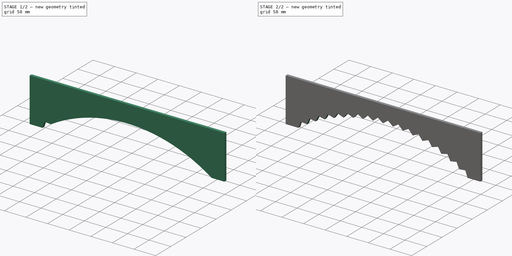
[diagram: build sequence overview — one tinted view per stage of 2, left to right]
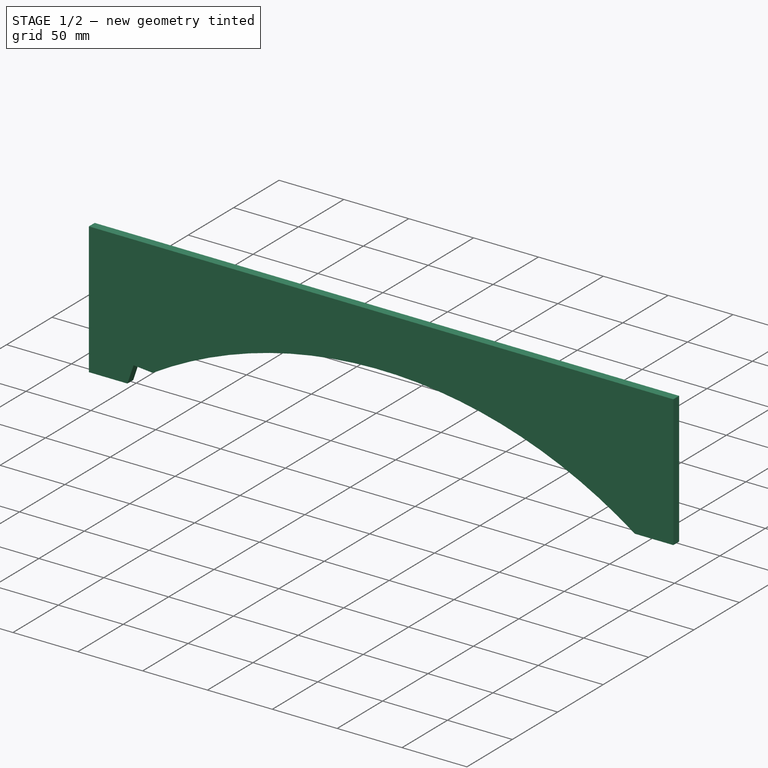
[diagram: stage 1 of 2 — iso view after this stage's code; geometry added in this stage tinted green]
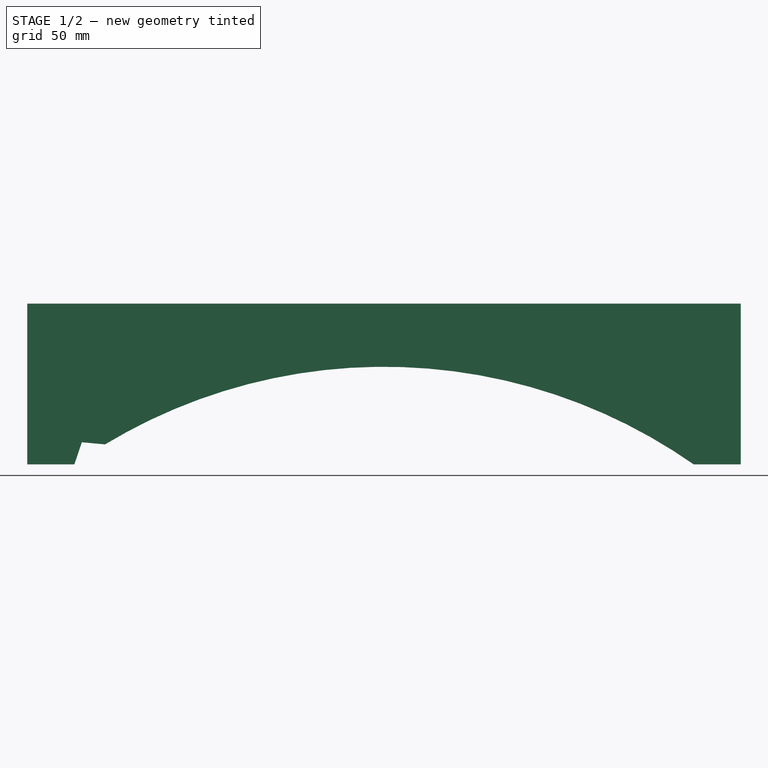
[diagram: stage 1 of 2 — front view after this stage's code; geometry added in this stage tinted green]
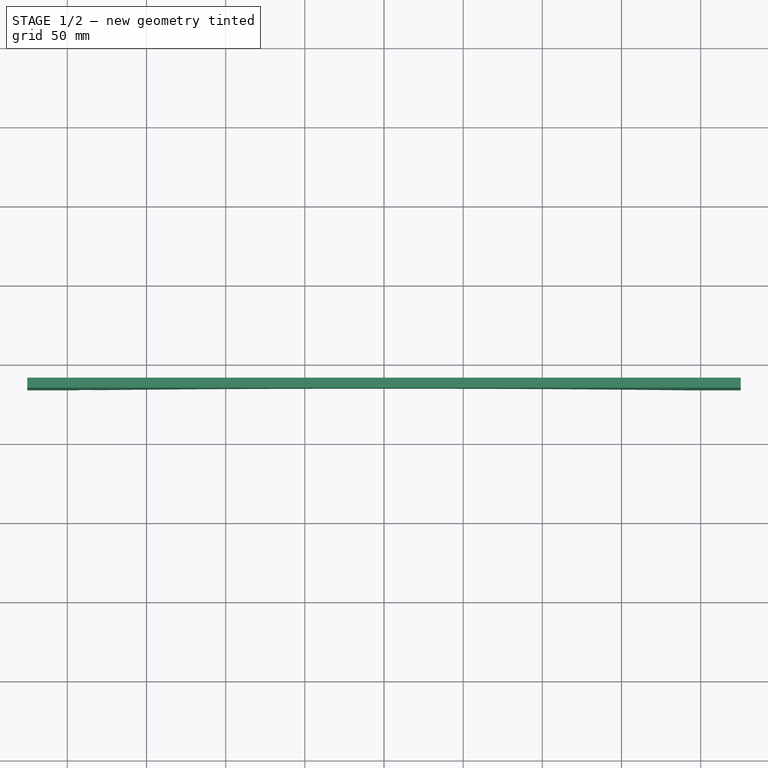
[diagram: stage 1 of 2 — top view after this stage's code; geometry added in this stage tinted green]
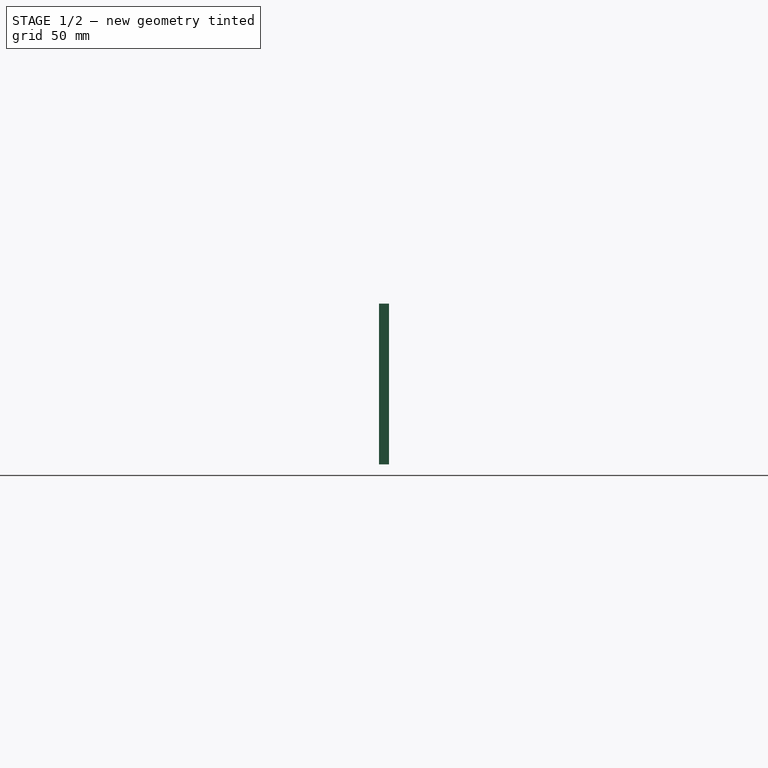
[diagram: stage 1 of 2 — right view after this stage's code; geometry added in this stage tinted green]
FCSTD DOCUMENT  (FreeCAD 0.17R13522 (Git))
Label: Lid jaw
License: CreativeCommons Attribution
LicenseURL: http://creativecommons.org/licenses/by/4.0/
objects: Sketcher::SketchObject×3, PartDesign::Pad×1, PartDesign::Pocket×1, PartDesign::PolarPattern×1, PartDesign::Body×1
note: 9 computed .brp shape members not serialized (recipe doc carries the construction recipe); baked Part::Feature solids carry a one-line shape summary decoded from their .brp

FEATURE [Sketcher::SketchObject] Sketch
  MapMode = 5
  Placement = pos=(0,0,0) rot=(1,0,0;1.5708rad)
  Support = -> [XZ_Plane]
  sketch-geometry (3):
    g0: LineSegment StartX=0 StartY=0 StartZ=0 EndX=0 EndY=-127 EndZ=0
    g1: LineSegment StartX=0 StartY=0 StartZ=0 EndX=203.2 EndY=0 EndZ=0
    g2: LineSegment StartX=203.2 StartY=0 StartZ=0 EndX=0 EndY=-127 EndZ=0
  constraints (8):
    c: Vertical(g0)
    c: Coincident(g1,g0)
    c: Horizontal(g1)
    c: Coincident(g2,g1)
    c: DistanceY(g0,g0) = 127
    c: DistanceX(g1,g1) = 203.2
    c: Coincident(g2,g0)
    c: Coincident(g-1,g0)
FEATURE [Sketcher::SketchObject] Sketch001
  MapMode = 5
  Placement = pos=(0,-9.652,0) rot=(1,0,0;1.5708rad)
  sketch-geometry (6):
    g0: LineSegment StartX=-225.298 StartY=381 StartZ=0 EndX=225.298 EndY=381 EndZ=0
    g1: LineSegment StartX=225.298 StartY=381 StartZ=0 EndX=225.298 EndY=279.4 EndZ=0
    g2: LineSegment StartX=225.298 StartY=279.4 StartZ=0 EndX=195.638 EndY=279.4 EndZ=0
    g3: LineSegment StartX=-225.298 StartY=279.4 StartZ=0 EndX=-225.298 EndY=381 EndZ=0
    g4: ArcOfCircle CenterX=0 CenterY=0 CenterZ=0 NormalX=0 NormalY=0 NormalZ=1 AngleXU=0 Radius=341.084 StartAngle=0.959931 EndAngle=2.18166
    g5: LineSegment StartX=-225.298 StartY=279.4 StartZ=0 EndX=-195.638 EndY=279.4 EndZ=0
  constraints (17):
    c: Coincident(g0,g1)
    c: Vertical(g1)
    c: Coincident(g1,g2)
    c: Horizontal(g2)
    c: Coincident(g3,g0)
    c: Vertical(g3)
    c: DistanceX(g0,g0) = 450.596
    c: Equal(g3,g1)
    c: Coincident(g4,g2)
    c: Symmetric(g0,g0,g-2)
    c: Coincident(g5,g3)
    c: Coincident(g5,g4)
    c: Horizontal(g5)
    c: Angle(g4) = 1.22173
    c: DistanceY(g1,g1) = 101.6
    c: DistanceY(g-1,g3) = 279.4
    c: Coincident(g4,g-1)
FEATURE [PartDesign::Pad] Pad
  Length = 6.35
  Length2 = 100.076
  Placement = pos=(0,-9.652,0) rot=(1,0,0;1.5708rad)
  Profile = -> Sketch001
  Type = 0
FEATURE [Sketcher::SketchObject] Sketch002
  MapMode = 5
  Placement = pos=(0,-16.002,0) rot=(1,0,0;1.5708rad)
  Support = -> [Pad]
  sketch-geometry (6):
    g0: LineSegment StartX=-168.49 StartY=291.336 StartZ=0 EndX=-190.855 EndY=293.415 EndZ=0
    g1: LineSegment StartX=-190.855 StartY=293.415 StartZ=0 EndX=-198.02 EndY=272.128 EndZ=0
    g2: GeomPoint X=-1.75424 Y=-305.294 Z=0
    g3: ArcOfCircle CenterX=0 CenterY=0 CenterZ=0 NormalX=0 NormalY=0 NormalZ=1 AngleXU=0 Radius=336.55 StartAngle=2.09513 EndAngle=2.19985
    g4: GeomPoint X=-1.75424 Y=-305.294 Z=0
    g5: GeomPoint X=-1.75424 Y=-305.294 Z=0
  constraints (9):
    c: Coincident(g0,g1)
    c: Equal(g0,g1)
    c: Coincident(g3,g1)
    c: Coincident(g3,g0)
    c: Angle(g3) = 0.10472
    c: Coincident(g4,g2)
    c: Coincident(g5,g2)
    c: Coincident(g3,g-1)
    c: Radius(g3) = 336.55
FEATURE [PartDesign::Pocket] Pocket
  BaseFeature = -> Pad
  Length = 5.08
  Length2 = 100
  Placement = pos=(0,-9.652,0) rot=(1,0,0;1.5708rad)
  Profile = -> Sketch002
  Type = 1
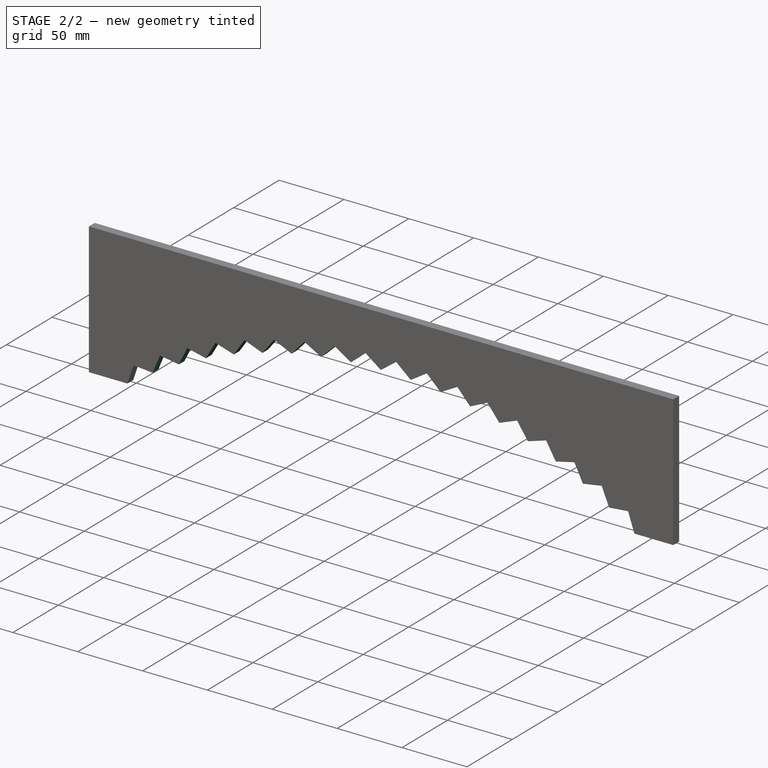
[diagram: stage 2 of 2 — iso view after this stage's code; geometry added in this stage tinted green]
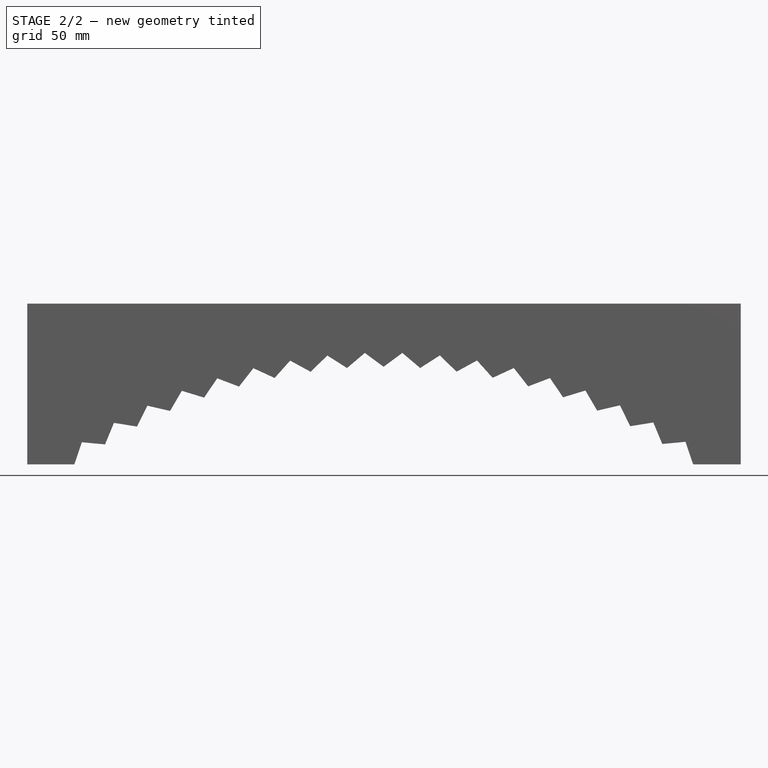
[diagram: stage 2 of 2 — front view after this stage's code; geometry added in this stage tinted green]
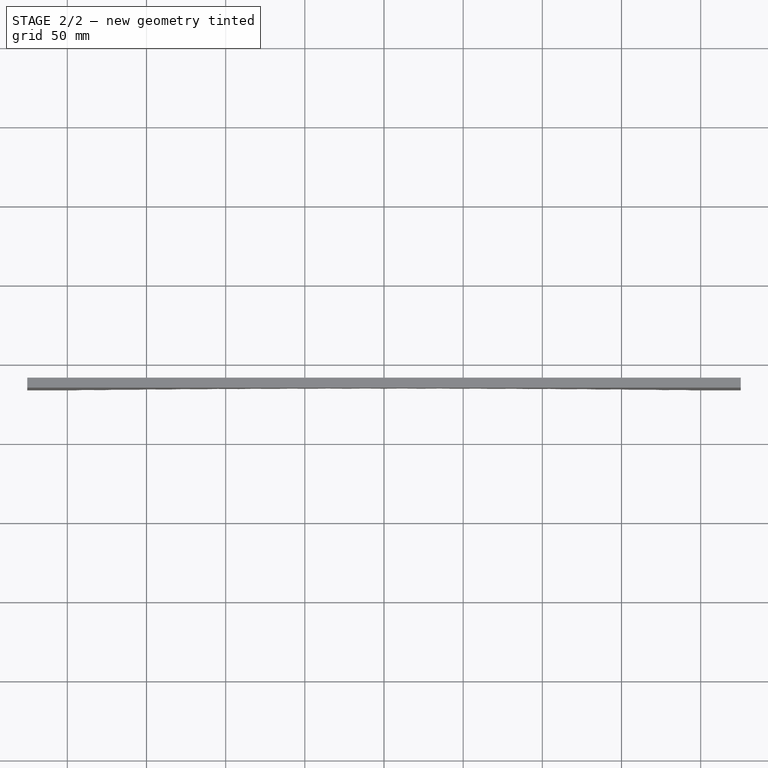
[diagram: stage 2 of 2 — top view after this stage's code; geometry added in this stage tinted green]
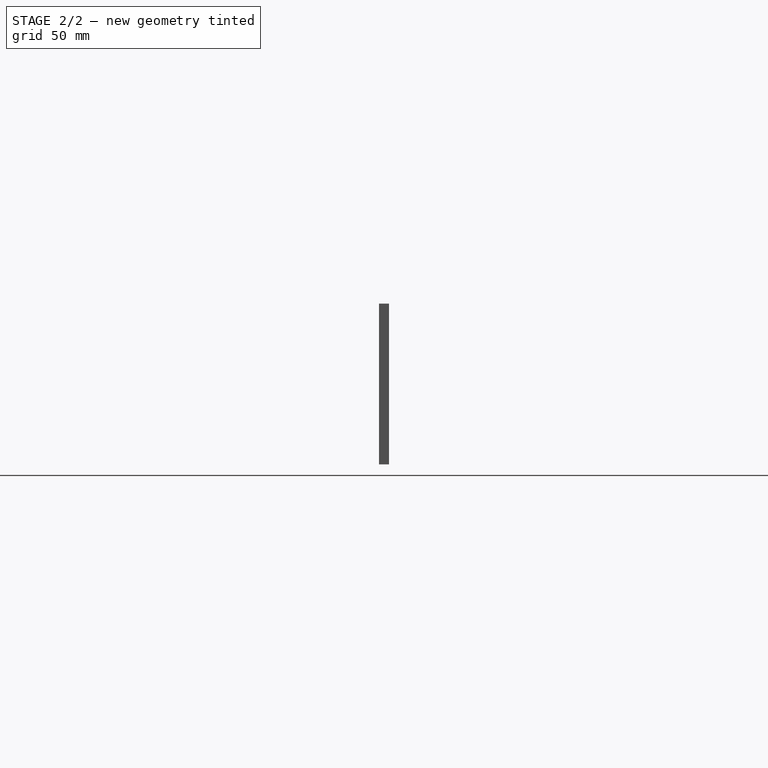
[diagram: stage 2 of 2 — right view after this stage's code; geometry added in this stage tinted green]
FEATURE [PartDesign::PolarPattern] PolarPattern
  Angle = 66
  Axis = -> Y_Axis
  BaseFeature = -> Pocket
  Occurrences = 18
  Originals = -> [Pocket]
  Placement = pos=(0,-9.652,0) rot=(1,0,0;1.5708rad)
FEATURE [PartDesign::Body] Body
  Group = -> [Sketch,Sketch001,Pad,Sketch002,Pocket,PolarPattern]
  Origin = -> Origin
  Tip = -> PolarPattern
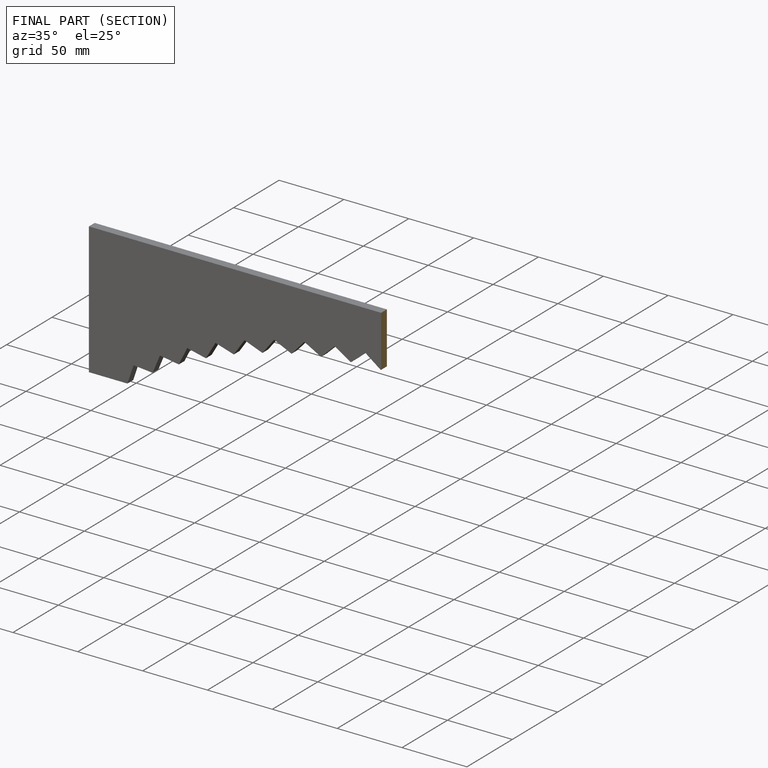
[diagram: finished part — half-section view (interior)]
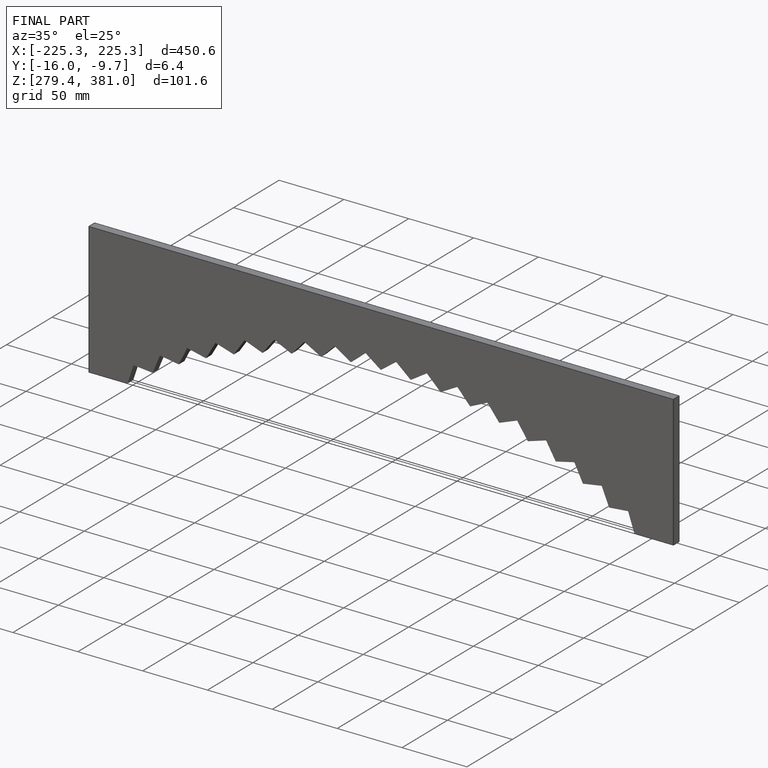
[diagram: finished part — iso view with bounding-box wireframe]
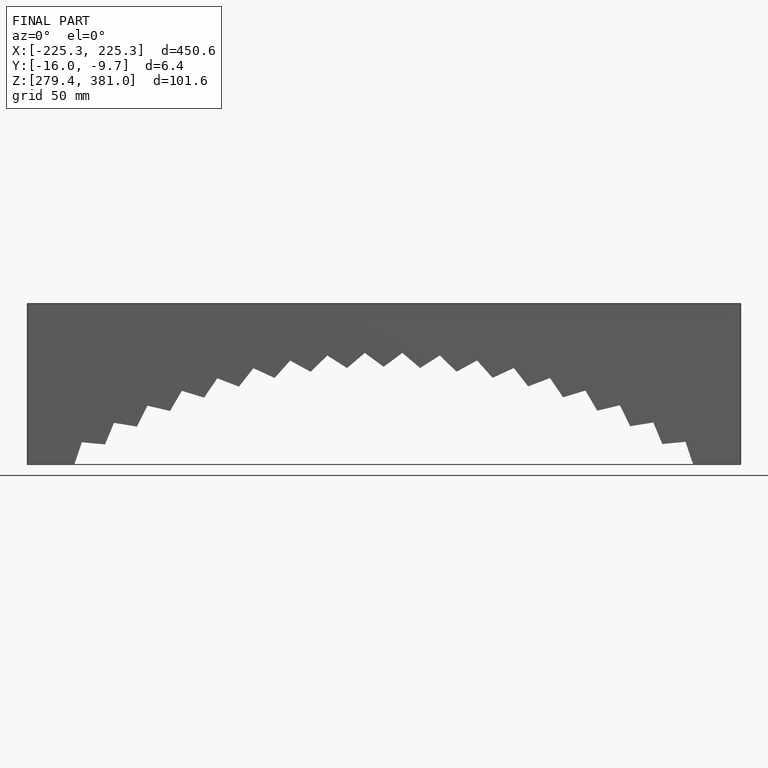
[diagram: finished part — front view with bounding-box wireframe]
